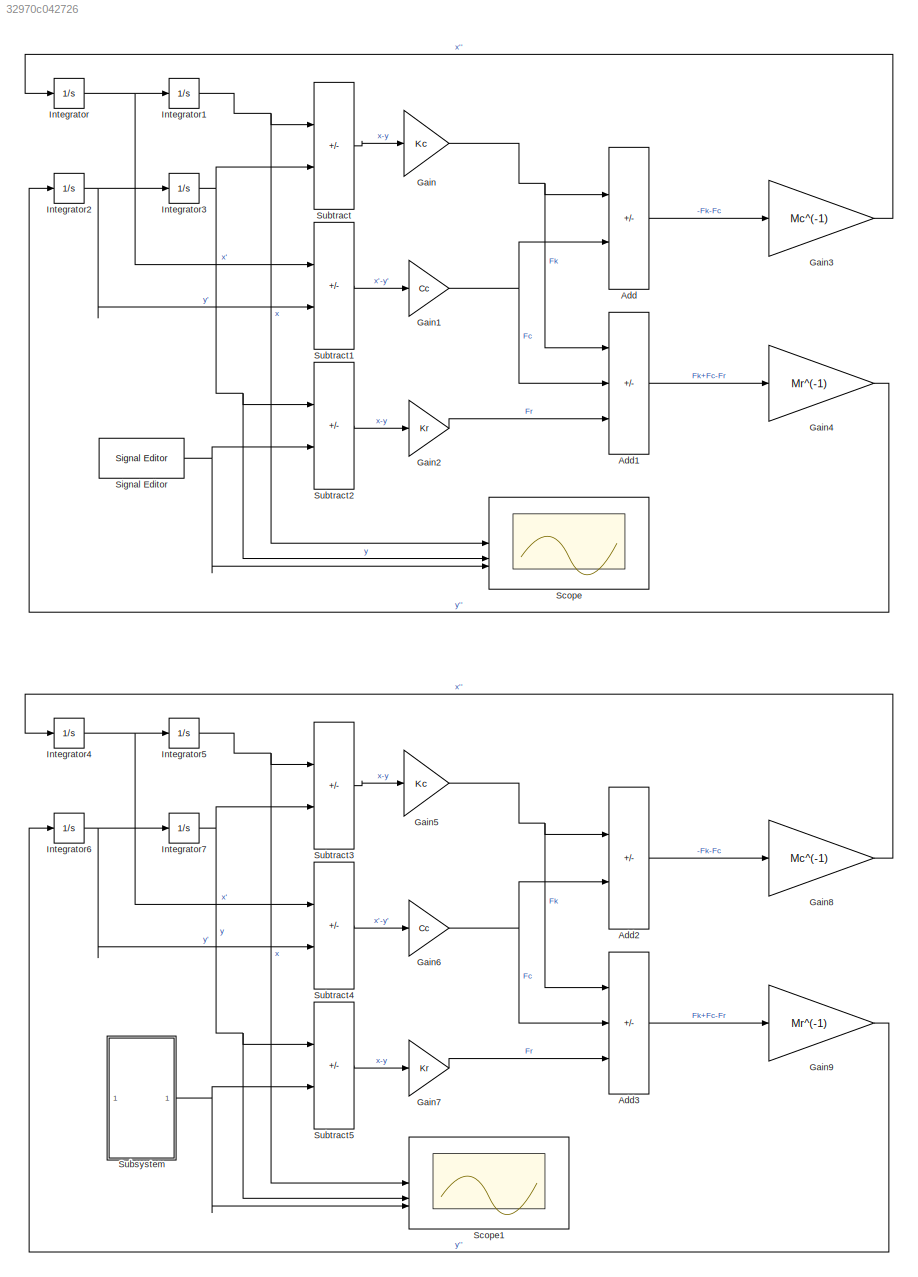
MODEL slx_32970c042726
KIND model
CONFIG AbsTol = auto
CONFIG EnableMultiTasking = off
CONFIG FixedStep = auto
CONFIG MaxStep = 0.01
CONFIG MinStep = auto
CONFIG RelTol = 1e-3
CONFIG SampleTimeConstraint = Unconstrained
CONFIG SolverName = VariableStepAuto
CONFIG StartTime = 0.0
CONFIG StopTime = 10
WORKSPACE source: mxarray member
WORKSPACE Amp1 = 1
WORKSPACE Amp2 = 0.5
WORKSPACE Amp3 = 0.75
WORKSPACE Amp4 = 0.3
WORKSPACE Bias1 = 0.1
WORKSPACE Bias2 = 0.1
WORKSPACE Bias3 = 0.6
WORKSPACE Cc = 30
WORKSPACE Freq1 = 2
WORKSPACE Freq2 = 3
WORKSPACE Freq3 = 2
WORKSPACE Kc = 20
WORKSPACE Kr = 700
WORKSPACE Mc = 60
WORKSPACE Mr = 12
WORKSPACE Phase1 = 0.5
WORKSPACE Phase2 = 3
WORKSPACE Phase3 = 6
BLOCK [Sum] Add
  IconShape = rectangular
  Inputs = --
BLOCK [Sum] Add1
  IconShape = rectangular
  Inputs = ++-
BLOCK [Sum] Add2
  IconShape = rectangular
  Inputs = --
BLOCK [Sum] Add3
  IconShape = rectangular
  Inputs = ++-
BLOCK [Gain] Gain
  Gain = Kc
BLOCK [Gain] Gain1
  Gain = Cc
BLOCK [Gain] Gain2
  Gain = Kr
BLOCK [Gain] Gain3
  Gain = Mc^(-1)
BLOCK [Gain] Gain4
  Gain = Mr^(-1)
BLOCK [Gain] Gain5
  Gain = Kc
BLOCK [Gain] Gain6
  Gain = Cc
BLOCK [Gain] Gain7
  Gain = Kr
BLOCK [Gain] Gain8
  Gain = Mc^(-1)
BLOCK [Gain] Gain9
  Gain = Mr^(-1)
BLOCK [Integrator] Integrator
BLOCK [Integrator] Integrator1
BLOCK [Integrator] Integrator2
BLOCK [Integrator] Integrator3
BLOCK [Integrator] Integrator4
BLOCK [Integrator] Integrator5
BLOCK [Integrator] Integrator6
BLOCK [Integrator] Integrator7
BLOCK [Scope] Scope
  Floating = off
  NumInputPorts = 3
  ScopeSpecificationString = Simulink.scopes.TimeScopeBlockCfg('CurrentConfiguration', extmgr.ConfigurationSet(extmgr.Configuration('Core','General UI',true),extmgr.Configuration('Core','Source UI',true),extmgr.Configuration('Sources','WiredSimulink',true),extmgr.Configuration('Visuals','Time Domain',true,'SerializedDisplays',{struct('MinYLimReal','-0.32586','MaxYLimReal','2.93276','YLabelReal','','MinYLimMag','0.00000','MaxY...<+2995ch>
BLOCK [Scope] Scope1
  Floating = off
  NumInputPorts = 3
  ScopeSpecificationString = Simulink.scopes.TimeScopeBlockCfg('CurrentConfiguration', extmgr.ConfigurationSet(extmgr.Configuration('Core','General UI',true),extmgr.Configuration('Core','Source UI',true),extmgr.Configuration('Sources','WiredSimulink',true,'DataLoggingVariableName','ScopeData1'),extmgr.Configuration('Visuals','Time Domain',true,'SerializedDisplays',{struct('MinYLimReal','-0.1975','MaxYLimReal','1.77752','YLabe...<+3074ch>
BLOCK [Reference] Signal Editor  REF=SignalEditorBlockLib/Signal Editor
  LibrarySourceBlock = simulink/Sources/Signal Editor
  SourceBlock = SignalEditorBlockLib/Signal Editor
  SourceType = SignalEditor
  UserDataPersistent = on
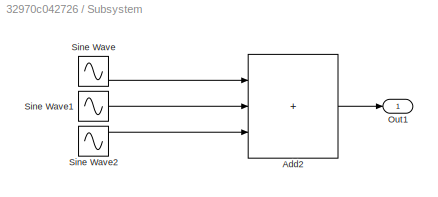
BLOCK [SubSystem] Subsystem
BLOCK [Sum] Subsystem/Add2
  IconShape = rectangular
  Inputs = +++
BLOCK [Outport] Subsystem/Out1
BLOCK [Sin] Subsystem/Sine Wave
  Amplitude = Amp1
  Bias = Bias1
  Frequency = Freq1
  Phase = Phase1
  SampleTime = 0
BLOCK [Sin] Subsystem/Sine Wave1
  Amplitude = Amp2
  Bias = Bias2
  Frequency = Freq2
  Phase = Phase2
  SampleTime = 0
BLOCK [Sin] Subsystem/Sine Wave2
  Amplitude = Amp3
  Bias = Bias3
  Frequency = Freq3
  Phase = Phase3
  SampleTime = 0
BLOCK [Sum] Subtract
  IconShape = rectangular
  Inputs = +-
BLOCK [Sum] Subtract1
  IconShape = rectangular
  Inputs = +-
BLOCK [Sum] Subtract2
  IconShape = rectangular
  Inputs = +-
BLOCK [Sum] Subtract3
  IconShape = rectangular
  Inputs = +-
BLOCK [Sum] Subtract4
  IconShape = rectangular
  Inputs = +-
BLOCK [Sum] Subtract5
  IconShape = rectangular
  Inputs = +-
LINE Add1:1 -> Gain4:1
LINE Add2:1 -> Gain8:1
LINE Add3:1 -> Gain9:1
LINE Add:1 -> Gain3:1
NET Gain1:1 -> Add1:2, Add:2
LINE Gain2:1 -> Add1:3
LINE Gain3:1 -> Integrator:1
LINE Gain4:1 -> Integrator2:1
NET Gain5:1 -> Add2:1, Add3:1
NET Gain6:1 -> Add2:2, Add3:2
LINE Gain7:1 -> Add3:3
LINE Gain8:1 -> Integrator4:1
LINE Gain9:1 -> Integrator6:1
NET Gain:1 -> Add1:1, Add:1
NET Integrator1:1 -> Scope:1, Subtract:1
NET Integrator2:1 -> Integrator3:1, Subtract1:2
NET Integrator3:1 -> Scope:2, Subtract2:1, Subtract:2
NET Integrator4:1 -> Integrator5:1, Subtract4:1
NET Integrator5:1 -> Scope1:1, Subtract3:1
NET Integrator6:1 -> Integrator7:1, Subtract4:2
NET Integrator7:1 -> Scope1:2, Subtract3:2, Subtract5:1
NET Integrator:1 -> Integrator1:1, Subtract1:1
NET Signal Editor:1 -> Scope:3, Subtract2:2
LINE Subsystem/Add2:1 -> Subsystem/Out1:1
LINE Subsystem/Sine Wave1:1 -> Subsystem/Add2:2
LINE Subsystem/Sine Wave2:1 -> Subsystem/Add2:3
LINE Subsystem/Sine Wave:1 -> Subsystem/Add2:1
NET Subsystem:1 -> Scope1:3, Subtract5:2
LINE Subtract1:1 -> Gain1:1
LINE Subtract2:1 -> Gain2:1
LINE Subtract3:1 -> Gain5:1
LINE Subtract4:1 -> Gain6:1
LINE Subtract5:1 -> Gain7:1
LINE Subtract:1 -> Gain:1
note: NET lines group one-source signal fan-out (src -> all destinations, sorted); 1:1 wires keep LINE
